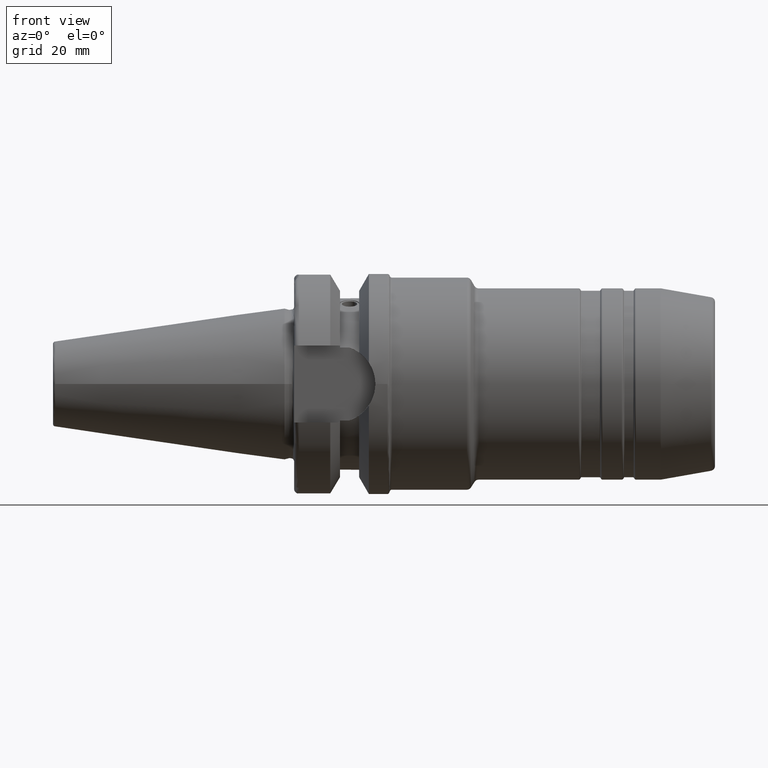
[diagram: clean part render]
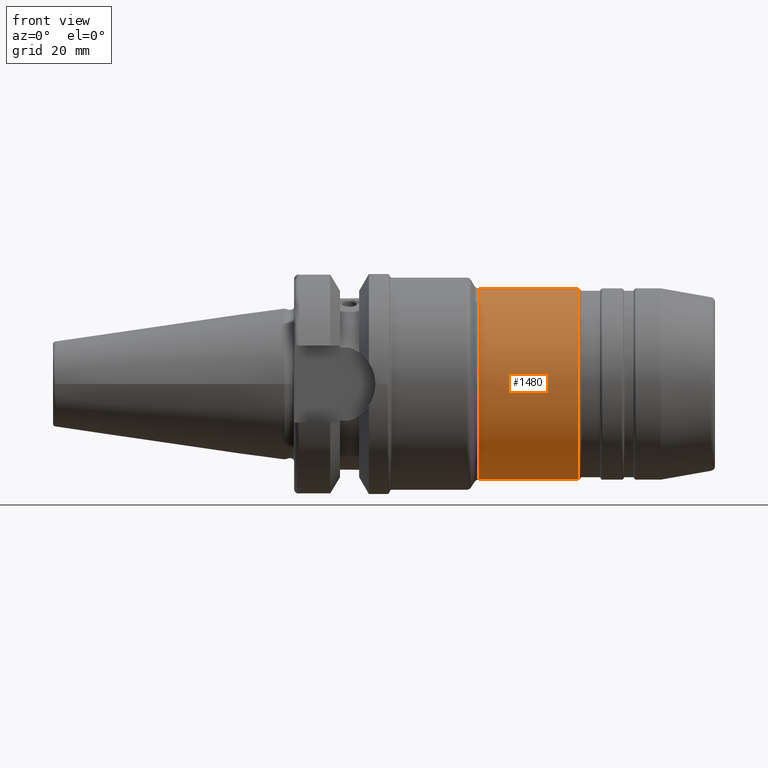
[diagram: same view with one face highlighted and labeled with its STEP entity id]
A machine part, front view. The second image highlights one B-rep face of the part: STEP entity #1480.
In plain terms, the highlighted cylindrical surface (bore or boss wall) has radius 20 mm, axis along (1, 0, 0).
Its self-contained STEP definition (entity closure, byte-faithful):
#123=LINE('',#2368,#196);
#196=VECTOR('',#1872,20.);
#265=CYLINDRICAL_SURFACE('',#1614,20.);
#312=FACE_OUTER_BOUND('',#405,.T.);
#405=EDGE_LOOP('',(#1026,#1027,#1028,#1029));
#515=CIRCLE('',#1613,20.);
#516=CIRCLE('',#1615,20.);
#616=VERTEX_POINT('',#2363);
#617=VERTEX_POINT('',#2367);
#771=EDGE_CURVE('',#616,#616,#515,.T.);
#772=EDGE_CURVE('',#616,#617,#123,.T.);
#773=EDGE_CURVE('',#617,#617,#516,.T.);
#1026=ORIENTED_EDGE('',*,*,#771,.F.);
#1027=ORIENTED_EDGE('',*,*,#772,.T.);
#1028=ORIENTED_EDGE('',*,*,#773,.F.);
#1029=ORIENTED_EDGE('',*,*,#772,.F.);
#1480=ADVANCED_FACE('',(#312),#265,.T.);
#1613=AXIS2_PLACEMENT_3D('',#2365,#1868,#1869);
#1614=AXIS2_PLACEMENT_3D('',#2366,#1870,#1871);
#1615=AXIS2_PLACEMENT_3D('',#2369,#1873,#1874);
#1868=DIRECTION('center_axis',(1.,0.,0.));
#1869=DIRECTION('ref_axis',(0.,1.22464679914735E-16,1.));
#1870=DIRECTION('center_axis',(1.,0.,0.));
#1871=DIRECTION('ref_axis',(0.,0.,-1.));
#1872=DIRECTION('',(-1.,0.,0.));
#1873=DIRECTION('center_axis',(-1.,0.,0.));
#1874=DIRECTION('ref_axis',(0.,1.22464679914735E-16,1.));
#2363=CARTESIAN_POINT('',(61.4803847577293,-2.44929359829471E-15,20.));
#2365=CARTESIAN_POINT('Origin',(61.4803847577293,0.,0.));
#2366=CARTESIAN_POINT('Origin',(50.8556624327026,0.,0.));
#2367=CARTESIAN_POINT('',(40.5773502691896,-2.44929359829471E-15,20.));
#2368=CARTESIAN_POINT('',(50.8556624327026,-2.44929359829471E-15,20.));
#2369=CARTESIAN_POINT('Origin',(40.5773502691896,0.,0.));